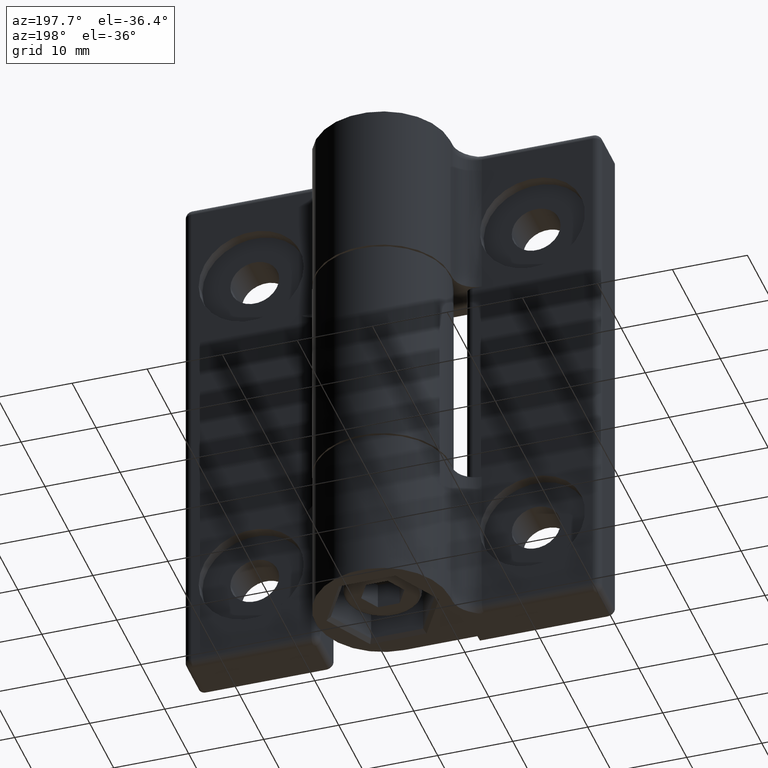
[diagram: clean part render]
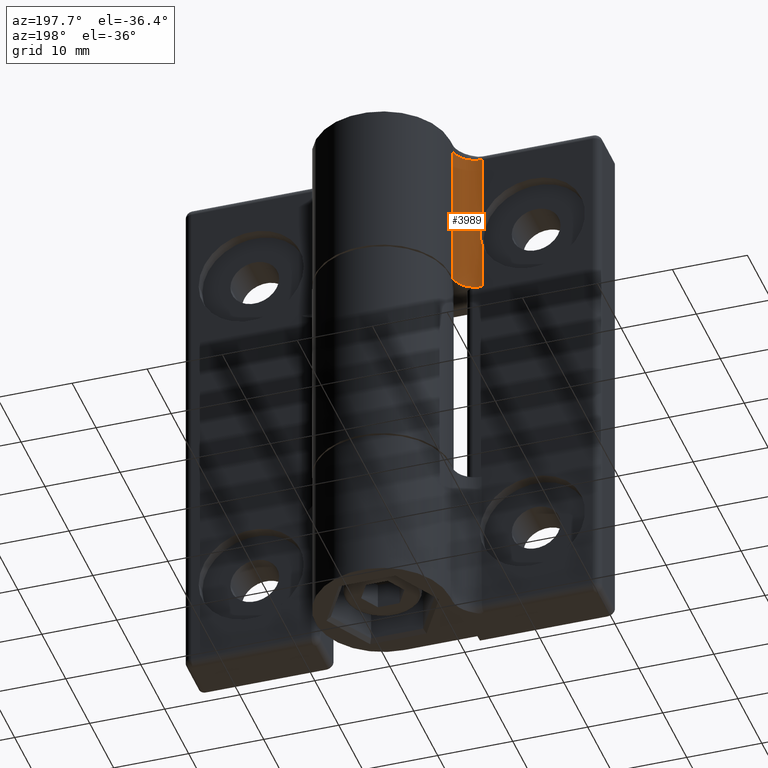
[diagram: same view with one face highlighted and labeled with its STEP entity id]
A machine part, auxiliary view. The second image highlights one B-rep face of the part: STEP entity #3989.
In plain terms, the highlighted cylindrical surface (edge-blend (fillet) strip) has radius 3 mm, axis along (0, 0, -1).
Its self-contained STEP definition (entity closure, byte-faithful):
#172=B_SPLINE_CURVE_WITH_KNOTS('',3,(#5373,#5374,#5375,#5376,#5377,#5378,
#5379,#5380,#5381,#5382,#5383),.UNSPECIFIED.,.F.,.F.,(4,2,3,2,4),(-0.18418644733806,
-0.148294602131087,0.,0.148294602131086,0.18418644733806),.UNSPECIFIED.);
#555=FACE_OUTER_BOUND('',#735,.T.);
#735=EDGE_LOOP('',(#2755,#2756,#2757,#2758,#2759,#2760));
#950=LINE('',#5288,#1215);
#951=LINE('',#5292,#1216);
#965=LINE('',#5345,#1230);
#1215=VECTOR('',#4457,9.6459503782261);
#1216=VECTOR('',#4460,6.6459503782261);
#1230=VECTOR('',#4498,20.);
#1480=CIRCLE('',#4172,3.);
#1488=CIRCLE('',#4188,3.);
#1582=VERTEX_POINT('',#5285);
#1583=VERTEX_POINT('',#5287);
#1584=VERTEX_POINT('',#5289);
#1585=VERTEX_POINT('',#5291);
#1597=VERTEX_POINT('',#5334);
#1601=VERTEX_POINT('',#5344);
#2068=EDGE_CURVE('',#1583,#1582,#950,.T.);
#2070=EDGE_CURVE('',#1585,#1584,#951,.T.);
#2087=EDGE_CURVE('',#1597,#1585,#1480,.T.);
#2092=EDGE_CURVE('',#1601,#1597,#965,.T.);
#2106=EDGE_CURVE('',#1583,#1584,#172,.F.);
#2107=EDGE_CURVE('',#1582,#1601,#1488,.T.);
#2755=ORIENTED_EDGE('',*,*,#2087,.T.);
#2756=ORIENTED_EDGE('',*,*,#2070,.T.);
#2757=ORIENTED_EDGE('',*,*,#2106,.F.);
#2758=ORIENTED_EDGE('',*,*,#2068,.T.);
#2759=ORIENTED_EDGE('',*,*,#2107,.T.);
#2760=ORIENTED_EDGE('',*,*,#2092,.T.);
#3934=CYLINDRICAL_SURFACE('',#4187,3.);
#3989=ADVANCED_FACE('',(#555),#3934,.F.);
#4172=AXIS2_PLACEMENT_3D('',#5335,#4488,#4489);
#4187=AXIS2_PLACEMENT_3D('',#5372,#4529,#4530);
#4188=AXIS2_PLACEMENT_3D('',#5384,#4531,#4532);
#4457=DIRECTION('',(0.,-1.,0.));
#4460=DIRECTION('',(0.,-1.,0.));
#4488=DIRECTION('center_axis',(0.,1.,0.));
#4489=DIRECTION('ref_axis',(0.707106781186548,0.,-0.707106781186547));
#4498=DIRECTION('',(0.,1.,0.));
#4529=DIRECTION('center_axis',(0.,1.,0.));
#4530=DIRECTION('ref_axis',(0.707106781186548,0.,-0.707106781186547));
#4531=DIRECTION('center_axis',(0.,-1.,0.));
#4532=DIRECTION('ref_axis',(0.,0.,-1.));
#5285=CARTESIAN_POINT('',(15.75,-35.,6.2));
#5287=CARTESIAN_POINT('',(15.75,-25.3540496217739,6.2));
#5288=CARTESIAN_POINT('',(15.75,0.,6.2));
#5289=CARTESIAN_POINT('',(15.75,-21.6459503782261,6.2));
#5291=CARTESIAN_POINT('',(15.75,-15.,6.2));
#5292=CARTESIAN_POINT('',(15.75,0.,6.2));
#5334=CARTESIAN_POINT('',(18.75,-15.,9.2));
#5335=CARTESIAN_POINT('Origin',(15.75,-15.,9.2));
#5344=CARTESIAN_POINT('',(18.75,-35.,9.2));
#5345=CARTESIAN_POINT('',(18.75,0.,9.2));
#5372=CARTESIAN_POINT('Origin',(15.75,0.,9.2));
#5373=CARTESIAN_POINT('Ctrl Pts',(15.75,-21.6459503782261,6.2));
#5374=CARTESIAN_POINT('Ctrl Pts',(15.7825294503926,-21.7643796735218,6.2));
#5375=CARTESIAN_POINT('Ctrl Pts',(15.8119554668993,-21.8837258580281,6.20052485652864));
#5376=CARTESIAN_POINT('Ctrl Pts',(15.9466588355718,-22.4993246038649,6.20448705765928));
#5377=CARTESIAN_POINT('Ctrl Pts',(16.,-23.005684659563,6.21043481422465));
#5378=CARTESIAN_POINT('Ctrl Pts',(16.,-23.5,6.21043481422465));
#5379=CARTESIAN_POINT('Ctrl Pts',(16.,-23.994315340437,6.21043481422465));
#5380=CARTESIAN_POINT('Ctrl Pts',(15.9466588355718,-24.5006753961351,6.20448705765928));
#5381=CARTESIAN_POINT('Ctrl Pts',(15.8119554668993,-25.1162741419719,6.20052485652864));
#5382=CARTESIAN_POINT('Ctrl Pts',(15.7825294503926,-25.2356203264782,6.2));
#5383=CARTESIAN_POINT('Ctrl Pts',(15.75,-25.3540496217739,6.2));
#5384=CARTESIAN_POINT('Origin',(15.75,-35.,9.2));